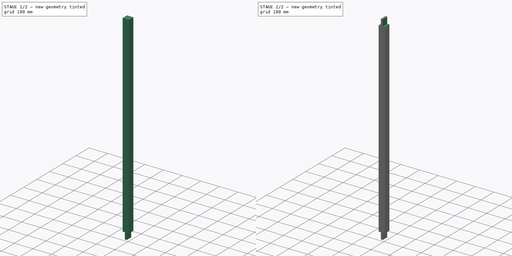
[diagram: build sequence overview — one tinted view per stage of 2, left to right]
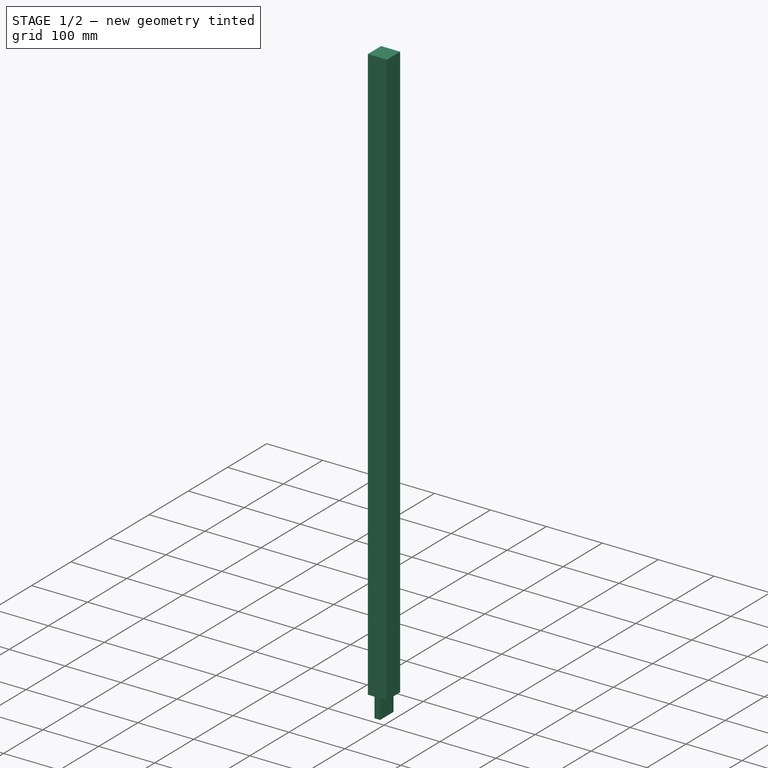
[diagram: stage 1 of 2 — iso view after this stage's code; geometry added in this stage tinted green]
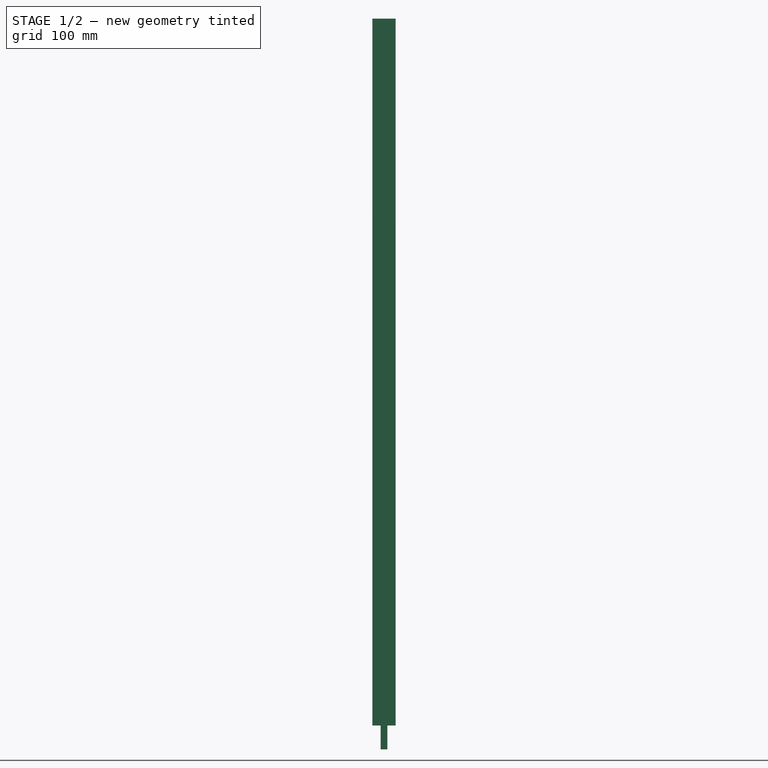
[diagram: stage 1 of 2 — front view after this stage's code; geometry added in this stage tinted green]
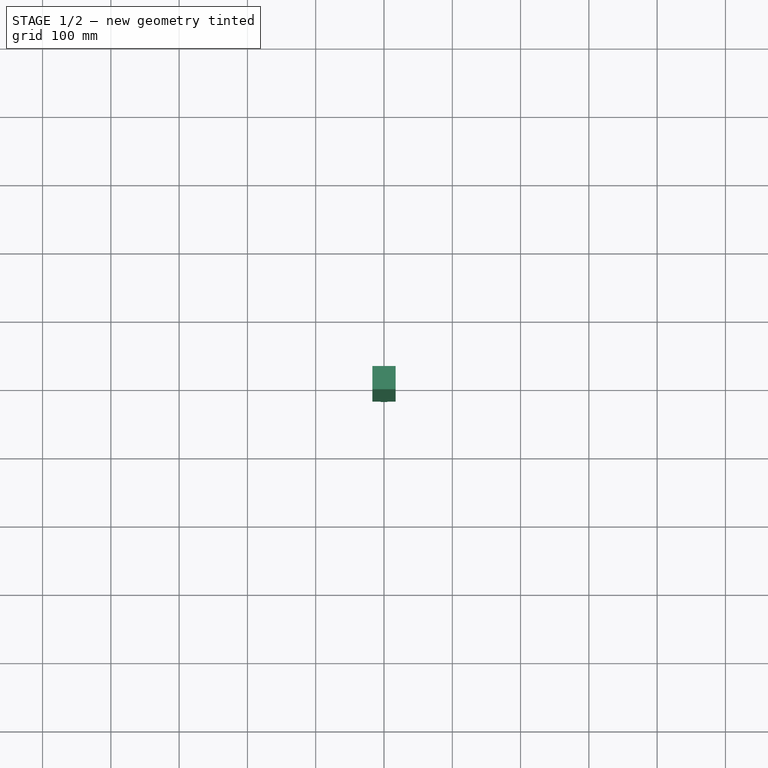
[diagram: stage 1 of 2 — top view after this stage's code; geometry added in this stage tinted green]
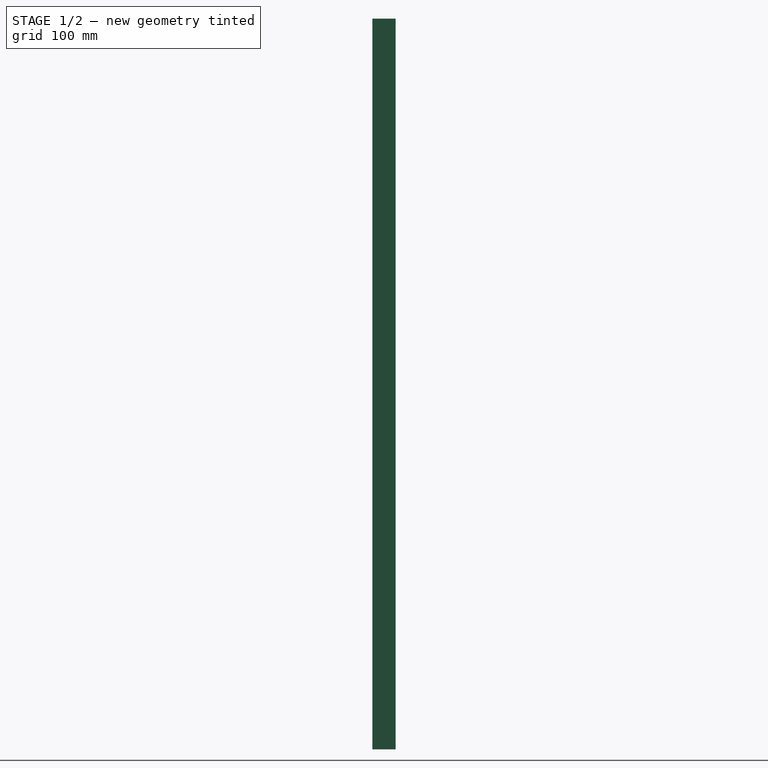
[diagram: stage 1 of 2 — right view after this stage's code; geometry added in this stage tinted green]
FCSTD DOCUMENT  (FreeCAD 1.0R39109 (Git))
Label: 03_cross_beam
License: All rights reserved
LicenseURL: http://en.wikipedia.org/wiki/All_rights_reserved
objects: Sketcher::SketchObject×2, Spreadsheet::Sheet×1, PartDesign::Pad×1, PartDesign::Pocket×1, PartDesign::Plane×1, PartDesign::Mirrored×1, PartDesign::Body×1
note: 14 computed .brp shape members not serialized (recipe doc carries the construction recipe); baked Part::Feature solids carry a one-line shape summary decoded from their .brp

FEATURE [Spreadsheet::Sheet] Spreadsheet
  cells = A2='Breite; B2(width)=34; A3='Höhe; B3(height)=34; A4='Länge; B4(length)==2 * width + 1000 + 2; C4='Links und Rechts 1mm Überstand; A5='Breite Zapfen; B5(widthtenon)=12; A6='Tiefe Zapfen; B6(depthtenon)=35; A7='Breite Schlitz; B7(widthmortise)=10
FEATURE [Sketcher::SketchObject] Sketch
  ArcFitTolerance = 1e-06
  AttachmentSupport = -> [XY_Plane]
  FullyConstrained = true
  MakeInternals = false
  MapMode = 5
  expr: Constraints[11] = Spreadsheet.width
  expr: Constraints[12] = Spreadsheet.height
  sketch-geometry (5):
    g0: LineSegment StartX=-17 StartY=17 StartZ=0 EndX=-17 EndY=-17 EndZ=0
    g1: LineSegment StartX=-17 StartY=-17 StartZ=0 EndX=17 EndY=-17 EndZ=0
    g2: LineSegment StartX=17 StartY=-17 StartZ=0 EndX=17 EndY=17 EndZ=0
    g3: LineSegment StartX=17 StartY=17 StartZ=0 EndX=-17 EndY=17 EndZ=0
    g4: LineSegment [constr] StartX=-17 StartY=17 StartZ=0 EndX=17 EndY=-17 EndZ=0
  constraints (13):
    c: Coincident(g0,g1)
    c: Coincident(g1,g2)
    c: Coincident(g2,g3)
    c: Coincident(g3,g0)
    c: Vertical(g0)
    c: Vertical(g2)
    c: Horizontal(g1)
    c: Horizontal(g3)
    c: Coincident(g4,g0)
    c: Coincident(g4,g1)
    c: Symmetric(g0,g1,g-1)
    c: DistanceX(g3,g3) = 34
    c: DistanceY(g2,g2) = 34
FEATURE [PartDesign::Pad] Pad
  Direction = (0,0,1)
  Length = 1070
  Length2 = 10
  Profile = -> Sketch
  ReferenceAxis = -> Sketch [N_Axis]
  Suppressed = false
  Type = 0
  expr: Length = Spreadsheet.length
FEATURE [Sketcher::SketchObject] Sketch001
  ArcFitTolerance = 1e-06
  AttachmentSupport = -> [XY_Plane]
  FullyConstrained = true
  MakeInternals = false
  MapMode = 5
  expr: Constraints[16] = Spreadsheet.widthtenon
  expr: Constraints[18] = Spreadsheet.widthmortise
  expr: Constraints[19] = Spreadsheet.height
  expr: Constraints[24] = Spreadsheet.height / 2
  expr: Constraints[25] = Spreadsheet.width / 2
  sketch-geometry (9):
    g0: LineSegment StartX=-17 StartY=17 StartZ=0 EndX=-17 EndY=-17 EndZ=0
    g1: LineSegment StartX=-17 StartY=-17 StartZ=0 EndX=-5 EndY=-17 EndZ=0
    g2: LineSegment StartX=-5 StartY=-17 StartZ=0 EndX=-5 EndY=17 EndZ=0
    g3: LineSegment StartX=-5 StartY=17 StartZ=0 EndX=-17 EndY=17 EndZ=0
    g4: LineSegment StartX=17 StartY=-17 StartZ=0 EndX=17 EndY=17 EndZ=0
    g5: LineSegment StartX=17 StartY=17 StartZ=0 EndX=5 EndY=17 EndZ=0
    g6: LineSegment StartX=5 StartY=17 StartZ=0 EndX=5 EndY=-17 EndZ=0
    g7: LineSegment StartX=5 StartY=-17 StartZ=0 EndX=17 EndY=-17 EndZ=0
    g8: LineSegment [constr] StartX=-5 StartY=17 StartZ=0 EndX=5 EndY=17 EndZ=0
  constraints (26):
    c: Coincident(g0,g1)
    c: Coincident(g1,g2)
    c: Coincident(g2,g3)
    c: Coincident(g3,g0)
    c: Vertical(g0)
    c: Vertical(g2)
    c: Horizontal(g1)
    c: Horizontal(g3)
    c: Coincident(g4,g5)
    c: Coincident(g5,g6)
    c: Coincident(g6,g7)
    c: Coincident(g7,g4)
    c: Vertical(g4)
    c: Vertical(g6)
    c: Horizontal(g5)
    c: Horizontal(g7)
    c: DistanceX(g3,g3) = 12
    c: Equal(g3,g5)
    c: DistanceX(g2,g5) = 10
    c: DistanceY(g0,g0) = 34
    c: Equal(g0,g6)
    c: Coincident(g8,g2)
    c: Coincident(g8,g5)
    c: Horizontal(g8)
    c: Distance(g-1,g8) = 17
    c: Distance(g-2,g0) = 17
FEATURE [PartDesign::Pocket] Pocket
  BaseFeature = -> Pad
  Direction = (0,0,-1)
  Length = 35
  Length2 = 5
  Profile = -> Sketch001
  ReferenceAxis = -> Sketch001 [N_Axis]
  Reversed = true
  Suppressed = false
  Type = 0
  expr: Length = Spreadsheet.depthtenon
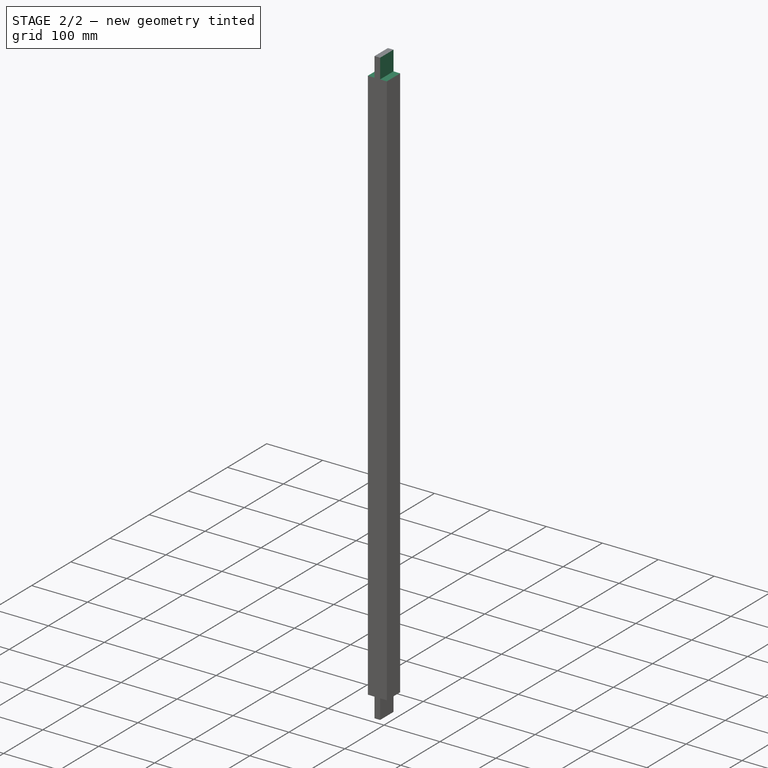
[diagram: stage 2 of 2 — iso view after this stage's code; geometry added in this stage tinted green]
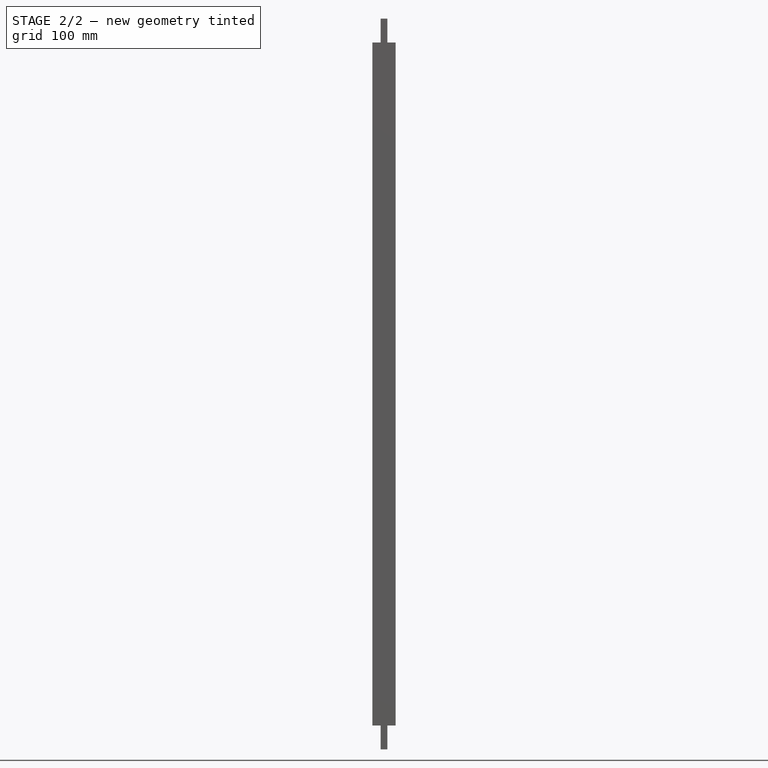
[diagram: stage 2 of 2 — front view after this stage's code; geometry added in this stage tinted green]
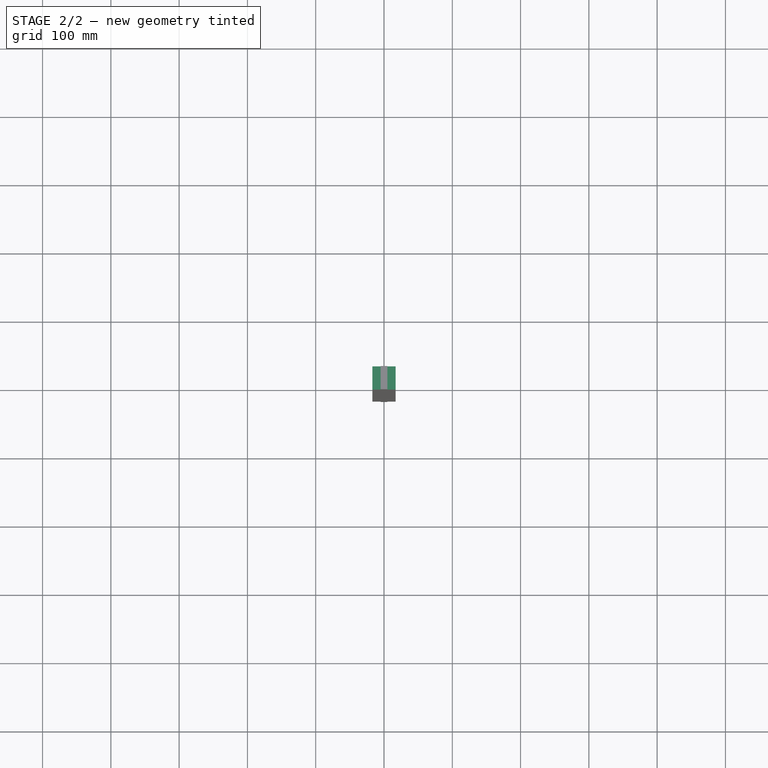
[diagram: stage 2 of 2 — top view after this stage's code; geometry added in this stage tinted green]
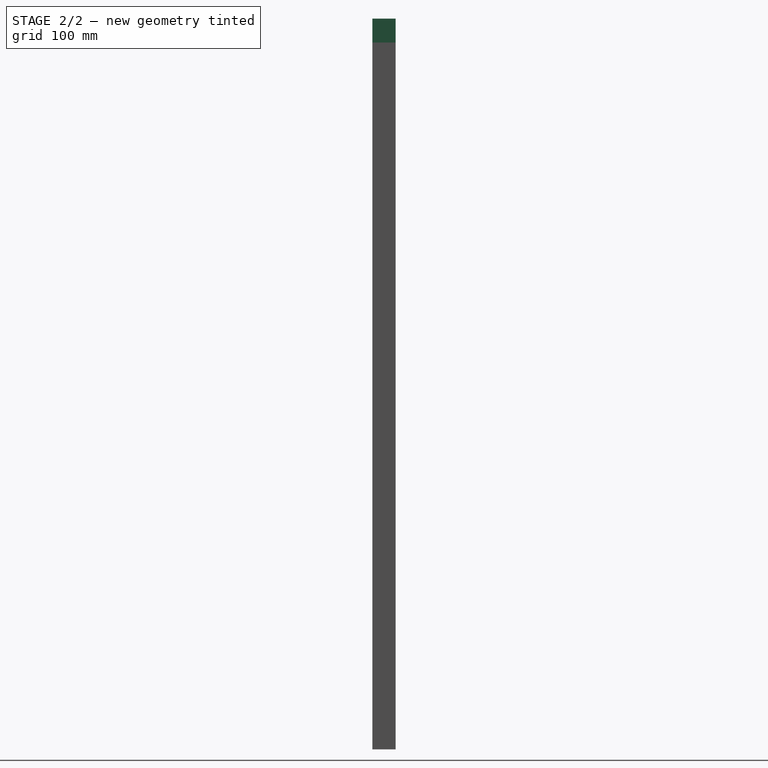
[diagram: stage 2 of 2 — right view after this stage's code; geometry added in this stage tinted green]
FEATURE [PartDesign::Plane] DatumPlane
  Length = 60
  MapMode = 2
  Placement = pos=(0,0,535) rot=(0,0,1;0rad)
  ResizeMode = 0
  Width = 60
  expr: .Placement.Base.z = Spreadsheet.length / 2
FEATURE [PartDesign::Mirrored] Mirrored
  BaseFeature = -> Pocket
  MirrorPlane = -> DatumPlane
  Originals = -> [Pocket]
  Suppressed = false
  TransformMode = 0
FEATURE [PartDesign::Body] Body
  AllowCompound = false
  Group = -> [Sketch,Pad,Sketch001,Pocket,DatumPlane,Mirrored]
  Origin = -> Origin
  Tip = -> Mirrored
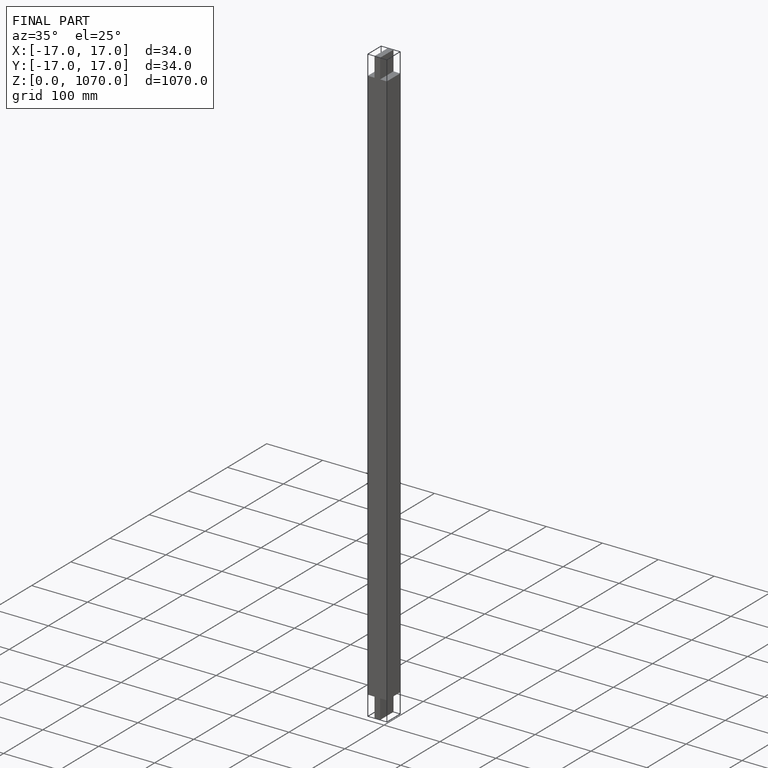
[diagram: finished part — iso view with bounding-box wireframe]
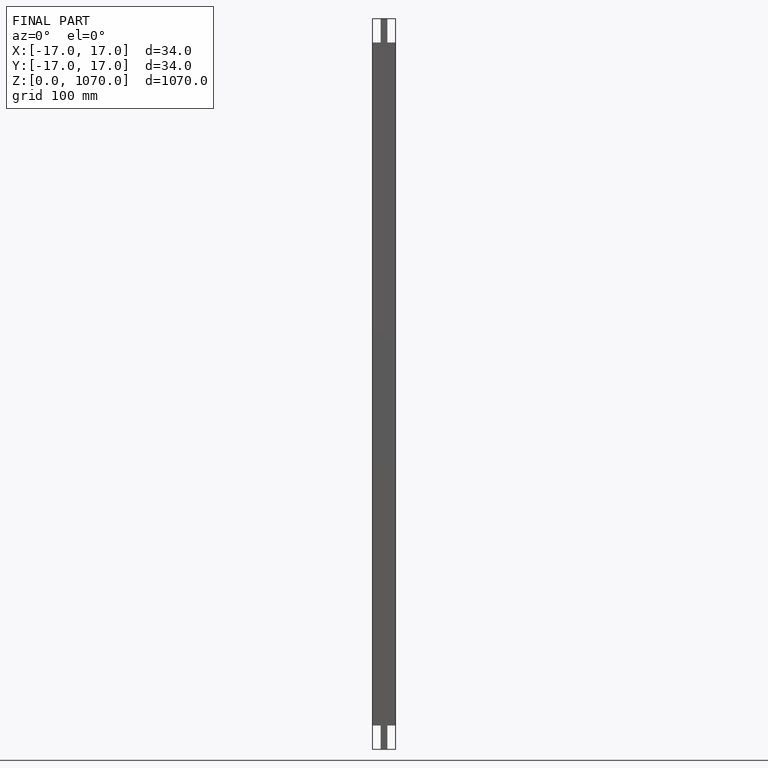
[diagram: finished part — front view with bounding-box wireframe]
